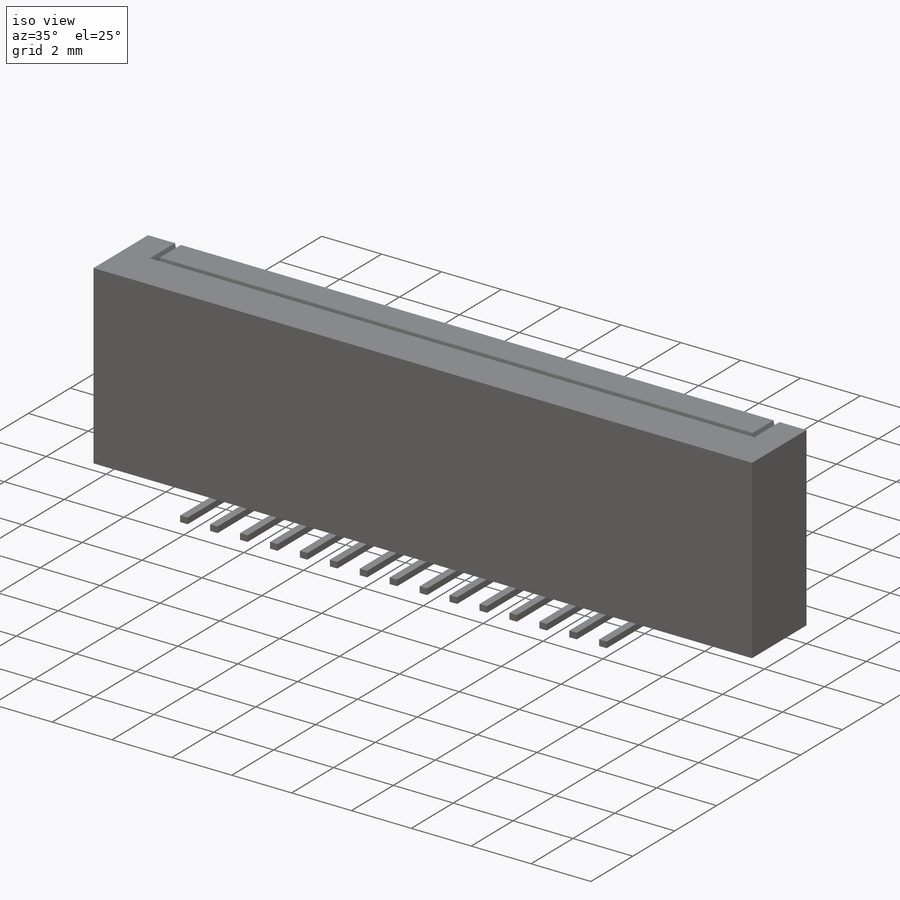
[diagram: iso view]
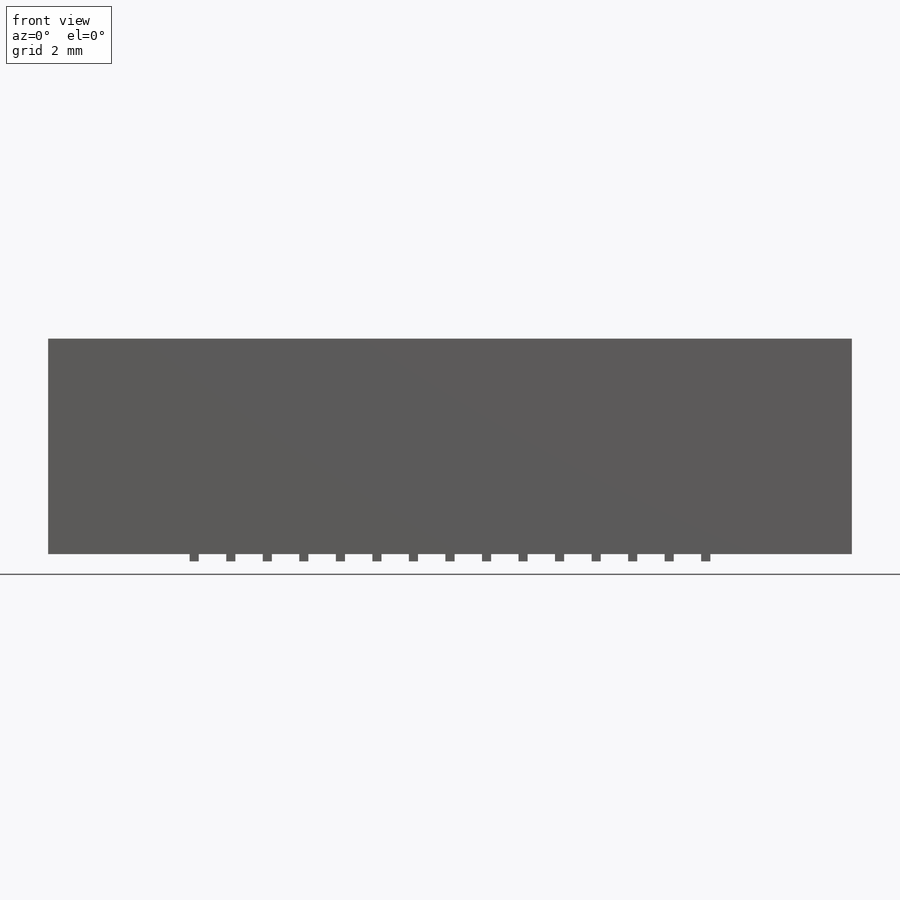
[diagram: front view]
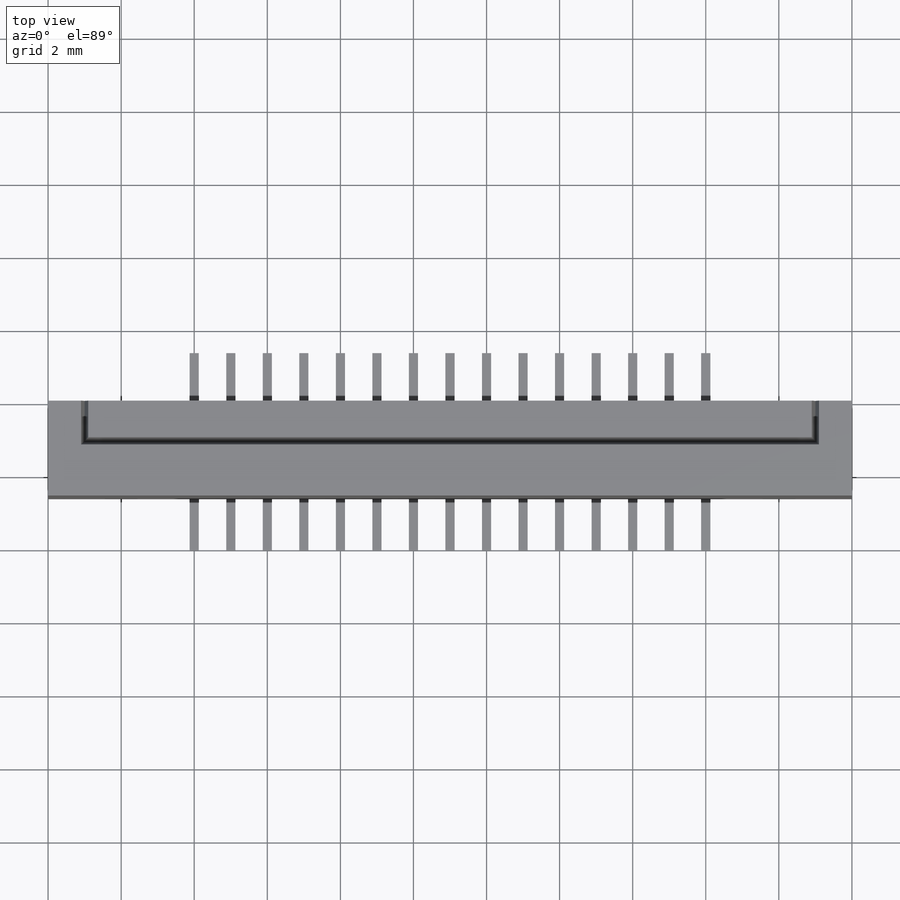
[diagram: top view]
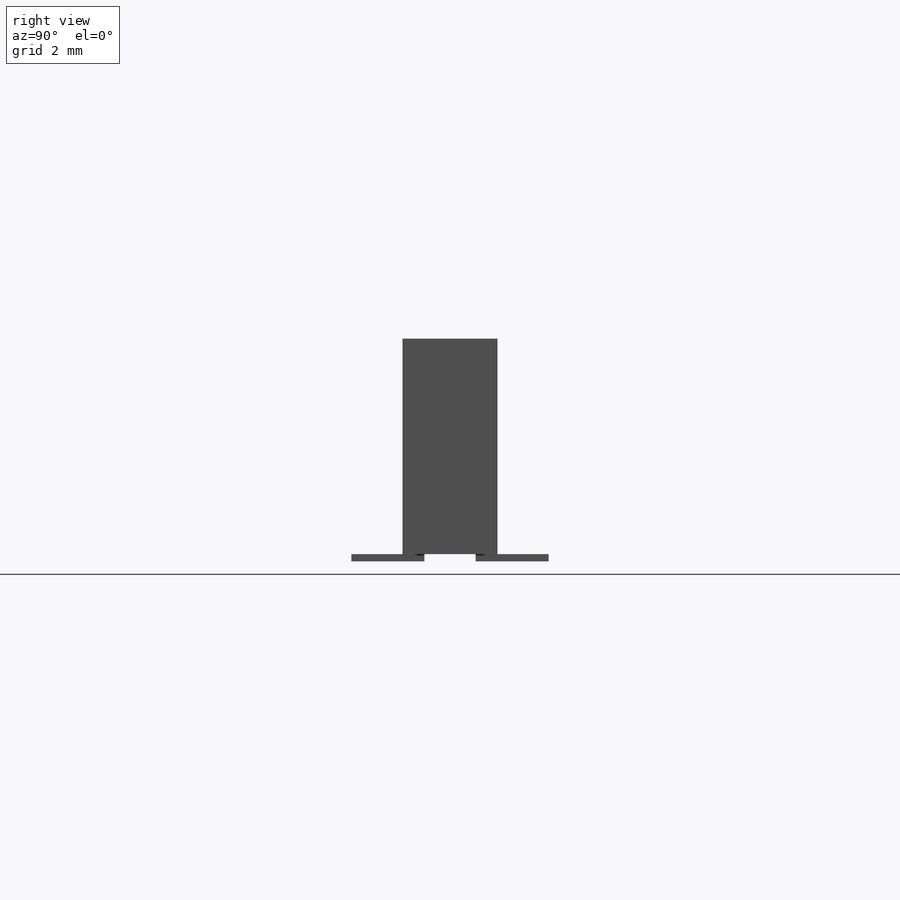
[diagram: right view]
SOLIDWORKS PART (.sldprt)
format: sldprt  version: not decoded by parser v0  size: 267,264 bytes
history: native  units: mm
features: plane x4, sketch x3, extrude x2, material x1, cut_extrude x1, pattern_linear x1, mirror x1 (+8 scaffold rows collapsed)
feature tree (21):
  scaffold x8  (default folders/planes/origin — collapsed)
  material  "Material <não especificado>"
  plane  "Plano frontal"
  plane  "Plano superior"
  plane  "Plano direito"
  sketch  "Esboço1"  dims[D1=22.0mm D2=5.9mm D3=0.0mm]
  extrude  "Ressalto-extrusão1"  Depth=2.6mm
  sketch  "Esboço2"  dims[D1=20.0mm D2=1.1mm D3=1.0mm D4=0.1mm D5=0.1mm]
  cut_extrude  "Corte-extrusão1"  Depth=1mm
  sketch  "Esboço3"  dims[D1=0.25mm D2=1.4mm D3=2.0mm D4=3.875mm]
  extrude  "Ressalto-extrusão2"  Depth=0.2mm
  pattern_linear  "Padrão linear1"  Count1=15 Count2=1 Spacing1=1mm Spacing2=10mm
  plane  "Plano1"
  mirror  "Espelhar1"
decode coverage: 7 of 8 modeling features carry decoded parameters
note: suppression state not decoded; provenance and decode notes live in map.json
